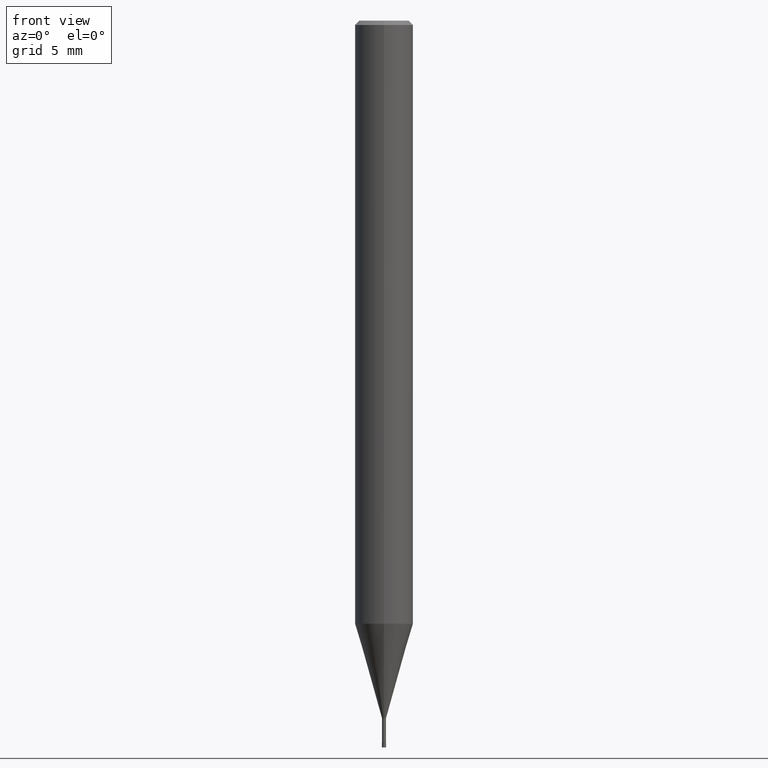
[diagram: clean part render]
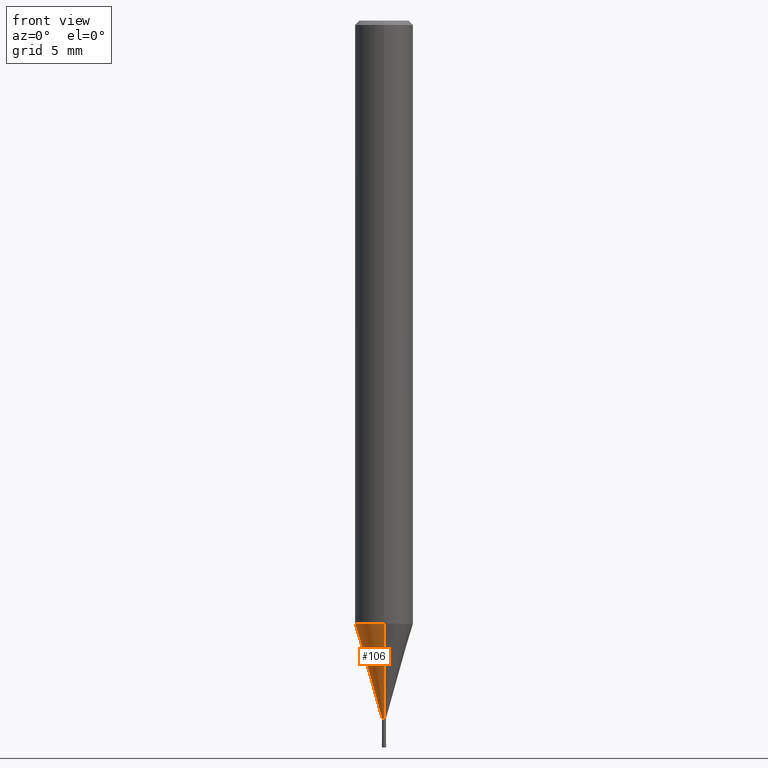
[diagram: same view with one face highlighted and labeled with its STEP entity id]
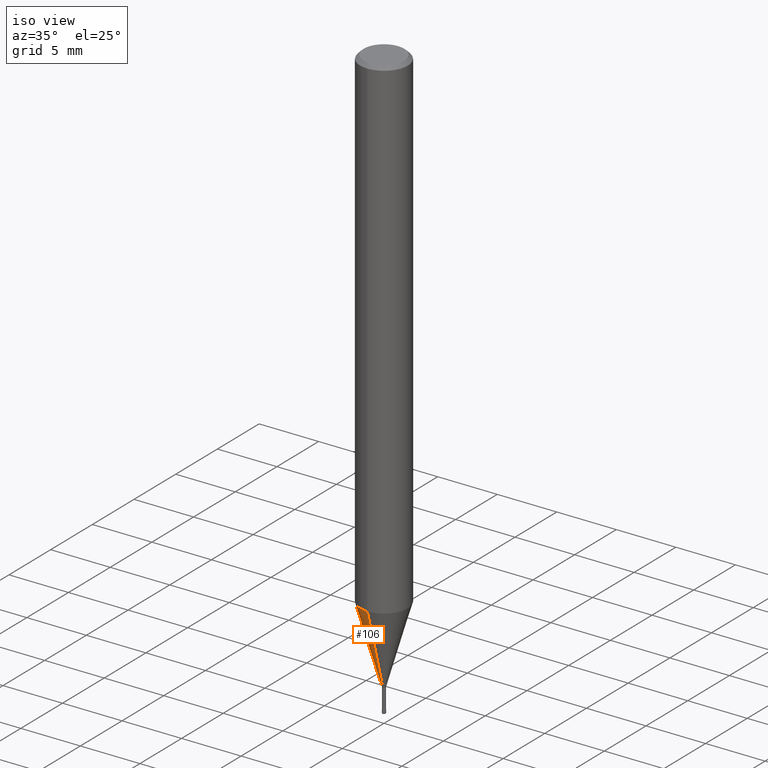
[diagram: same view with one face highlighted and labeled with its STEP entity id]
A machine part, front view. The second image highlights one B-rep face of the part: STEP entity #106.
A second angle (iso view) of the same face is appended — the face is thin or edge-on in the first view.
In plain terms, the highlighted conical surface has half-angle 16 deg.
Its self-contained STEP definition (entity closure, byte-faithful):
#106=ADVANCED_FACE('',(#260),#261,.T.);
#130=EDGE_CURVE('',#160,#198,#288,.T.);
#136=EDGE_CURVE('',#200,#216,#294,.T.);
#144=EDGE_CURVE('',#216,#160,#304,.T.);
#160=VERTEX_POINT('',#321);
#180=EDGE_CURVE('',#200,#198,#343,.T.);
#198=VERTEX_POINT('',#364);
#200=VERTEX_POINT('',#366);
#216=VERTEX_POINT('',#387);
#260=FACE_OUTER_BOUND('',#424,.T.);
#261=CONICAL_SURFACE('',#425,1.06745,0.279253818445948);
#288=LINE('',#461,#462);
#294=LINE('',#468,#469);
#304=CIRCLE('',#480,1.99995);
#321=CARTESIAN_POINT('',(0.0,1.99995,-41.496));
#343=CIRCLE('',#527,0.13495);
#364=CARTESIAN_POINT('',(0.0,0.13495,-48.0));
#366=CARTESIAN_POINT('',(1.6526062744833E-017,-0.13495,-48.0));
#387=CARTESIAN_POINT('',(2.44915147732706E-016,-1.99995,-41.496));
#424=EDGE_LOOP('',(#618,#619,#620,#621));
#425=AXIS2_PLACEMENT_3D('',#622,#623,#624);
#461=CARTESIAN_POINT('',(-1.3072060523877E-016,1.06745,-44.748));
#462=VECTOR('',#668,1.0);
#468=CARTESIAN_POINT('',(1.3072060523877E-016,-1.06745,-44.748));
#469=VECTOR('',#670,1.0);
#480=AXIS2_PLACEMENT_3D('',#687,#688,#689);
#527=AXIS2_PLACEMENT_3D('',#723,#724,#725);
#618=ORIENTED_EDGE('',*,*,#130,.T.);
#619=ORIENTED_EDGE('',*,*,#180,.F.);
#620=ORIENTED_EDGE('',*,*,#136,.T.);
#621=ORIENTED_EDGE('',*,*,#144,.T.);
#622=CARTESIAN_POINT('',(0.0,0.0,-44.748));
#623=DIRECTION('',(-0.0,-0.0,1.0));
#624=DIRECTION('',(0.0,1.0,0.0));
#668=DIRECTION('',(3.3754859704966E-017,-0.275638449854572,-0.961261382227419));
#670=DIRECTION('',(3.3754859704966E-017,-0.275638449854572,0.961261382227419));
#687=CARTESIAN_POINT('',(0.0,0.0,-41.496));
#688=DIRECTION('',(0.0,0.0,-1.0));
#689=DIRECTION('',(0.0,1.0,0.0));
#723=CARTESIAN_POINT('',(0.0,0.0,-48.0));
#724=DIRECTION('',(0.0,0.0,-1.0));
#725=DIRECTION('',(0.0,1.0,0.0));